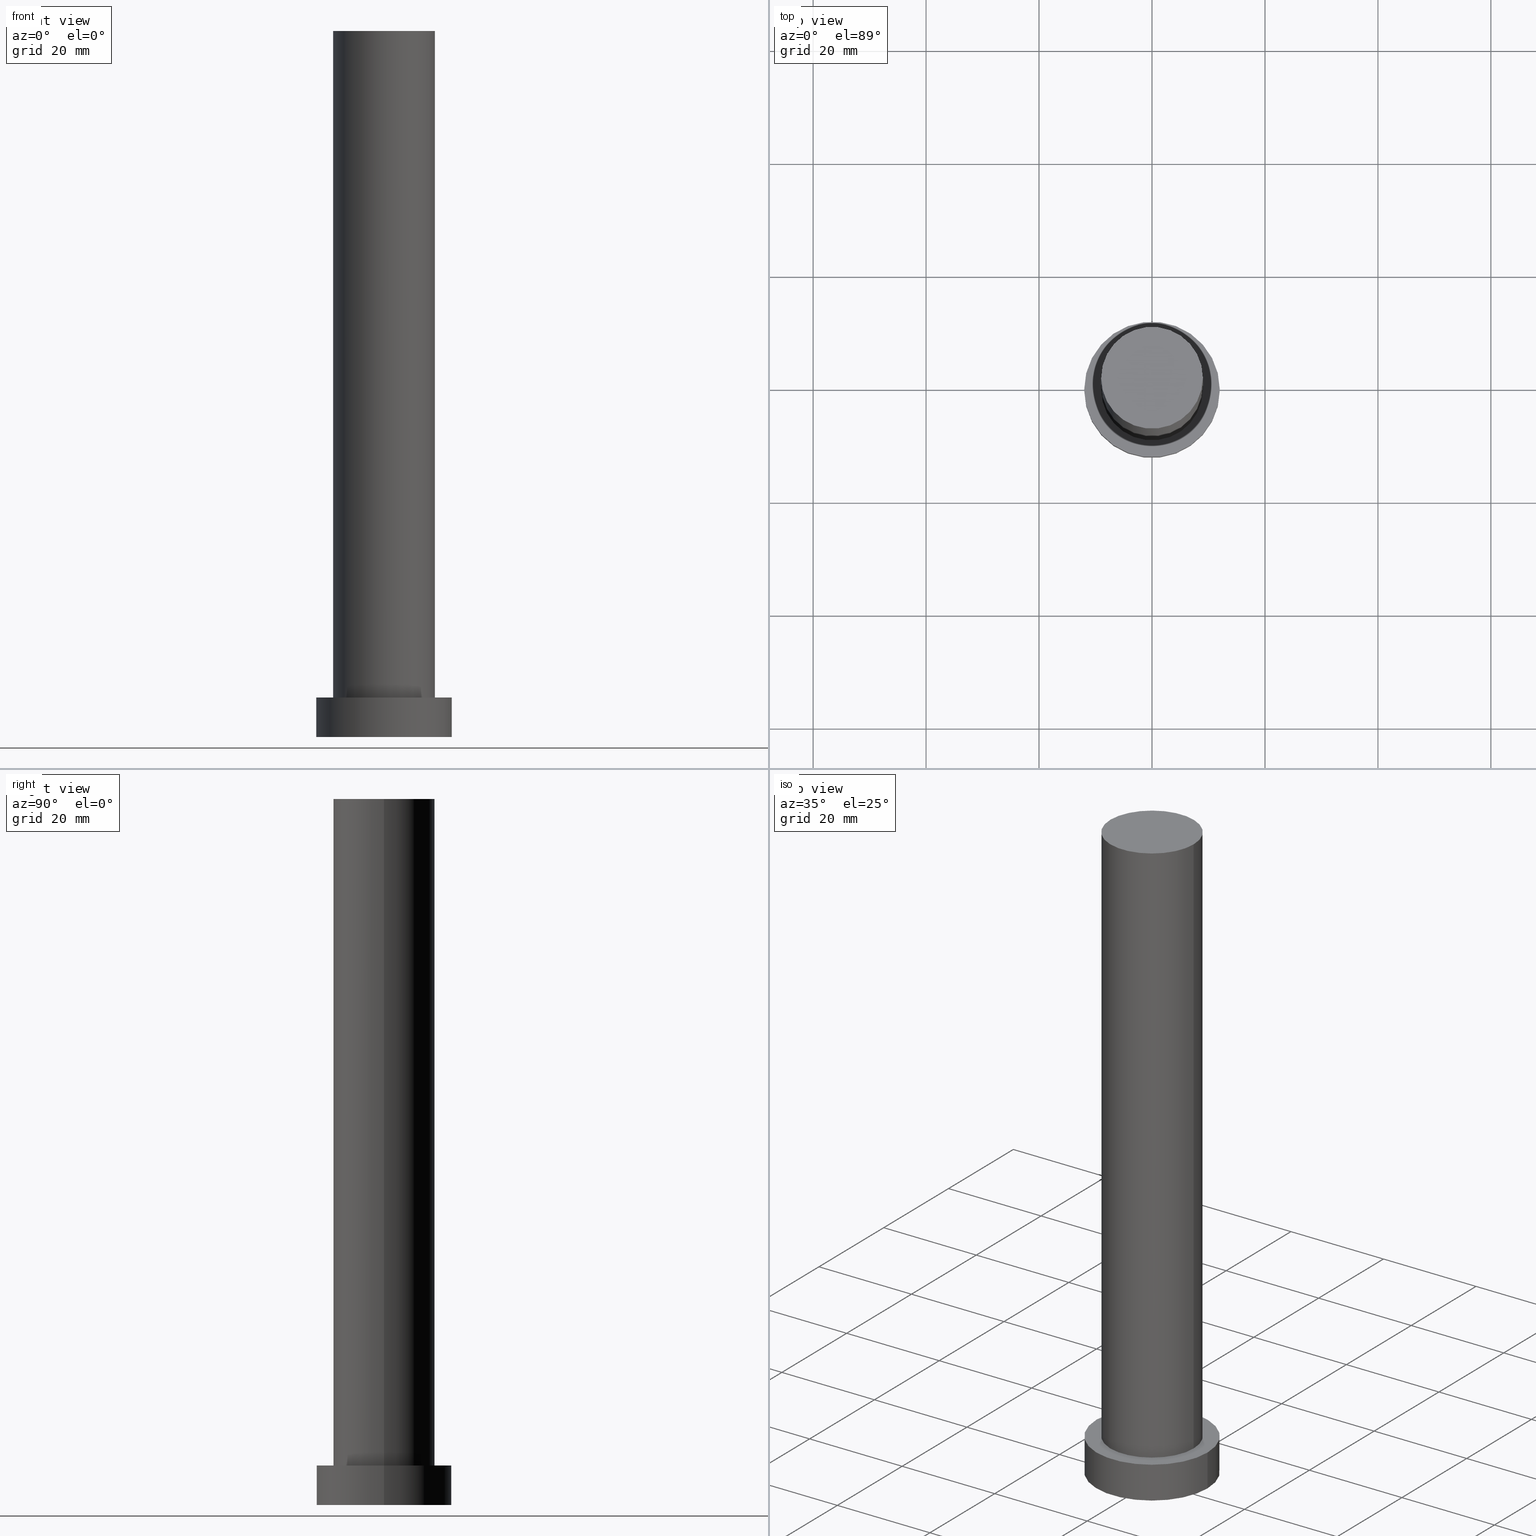
[diagram: canonical four-view strip — front | top / right | iso, engineering-drawing reading convention]
A machine part, canonical four-view strip (front | top / right | iso — engineering-drawing reading convention). The complete STEP part file that produces these views, byte-faithful:
ISO-10303-21;
HEADER;
FILE_DESCRIPTION (( 'STEP AP203' ),
    '1' );
FILE_NAME ('710a.STEP',
    '2023-02-13T09:14:13',
    ( '' ),
    ( '' ),
    'SwSTEP 2.0',
    'SolidWorks 2019',
    '' );
FILE_SCHEMA (( 'CONFIG_CONTROL_DESIGN' ));
ENDSEC;

DATA;
#1 = ADVANCED_FACE ( 'NONE', ( #109 ), #94, .T. ) ;
#2 = ORIENTED_EDGE ( 'NONE', *, *, #130, .T. ) ;
#3 = EDGE_LOOP ( 'NONE', ( #149, #112, #221, #139 ) ) ;
#4 = CYLINDRICAL_SURFACE ( 'NONE', #195, 12.00000000000000178 ) ;
#5 = EDGE_LOOP ( 'NONE', ( #68, #7, #147, #87 ) ) ;
#6 = LOCAL_TIME ( 10, 14, 13.00000000000000000, #77 ) ;
#7 = ORIENTED_EDGE ( 'NONE', *, *, #234, .T. ) ;
#8 = CARTESIAN_POINT ( 'NONE',  ( 0.000000000000000000, 0.000000000000000000, 125.0000000000000000 ) ) ;
#9 = FACE_OUTER_BOUND ( 'NONE', #242, .T. ) ;
#10 = EDGE_CURVE ( 'NONE', #53, #194, #13, .T. ) ;
#11 = APPROVAL_DATE_TIME ( #102, #123 ) ;
#12 = CARTESIAN_POINT ( 'NONE',  ( 0.000000000000000000, 0.000000000000000000, 125.0000000000000000 ) ) ;
#13 = CIRCLE ( 'NONE', #217, 12.00000000000000178 ) ;
#14 = PERSON_AND_ORGANIZATION ( #190, #51 ) ;
#15 = CARTESIAN_POINT ( 'NONE',  ( 0.000000000000000000, 0.000000000000000000, 0.000000000000000000 ) ) ;
#16 = APPROVAL_ROLE ( '' ) ;
#17 = CARTESIAN_POINT ( 'NONE',  ( 0.000000000000000000, 0.000000000000000000, 125.0000000000000000 ) ) ;
#18 = CALENDAR_DATE ( 2023, 13, 2 ) ;
#19 =( NAMED_UNIT ( * ) PLANE_ANGLE_UNIT ( ) SI_UNIT ( $, .RADIAN. ) );
#20 =( NAMED_UNIT ( * ) SI_UNIT ( $, .STERADIAN. ) SOLID_ANGLE_UNIT ( ) );
#21 = ADVANCED_FACE ( 'NONE', ( #222 ), #67, .T. ) ;
#22 = MECHANICAL_CONTEXT ( 'NONE', #42, 'mechanical' ) ;
#23 = EDGE_LOOP ( 'NONE', ( #163, #81, #2, #127 ) ) ;
#24 = AXIS2_PLACEMENT_3D ( 'NONE', #164, #241, #168 ) ;
#25 = DIRECTION ( 'NONE',  ( -0.000000000000000000, -0.000000000000000000, -1.000000000000000000 ) ) ;
#26 = CARTESIAN_POINT ( 'NONE',  ( -12.00000000000000178, 0.000000000000000000, 7.000000000000000000 ) ) ;
#27 = CC_DESIGN_DATE_AND_TIME_ASSIGNMENT ( #202, #172, ( #95 ) ) ;
#28 = EDGE_CURVE ( 'NONE', #233, #240, #219, .T. ) ;
#29 = AXIS2_PLACEMENT_3D ( 'NONE', #8, #239, #66 ) ;
#30 = CARTESIAN_POINT ( 'NONE',  ( 0.000000000000000000, 0.000000000000000000, 7.000000000000000000 ) ) ;
#31 = DIRECTION ( 'NONE',  ( 0.000000000000000000, 0.000000000000000000, 1.000000000000000000 ) ) ;
#32 = COORDINATED_UNIVERSAL_TIME_OFFSET ( 1, 0, .AHEAD. ) ;
#33 = DIRECTION ( 'NONE',  ( 1.000000000000000000, 0.000000000000000000, -0.000000000000000000 ) ) ;
#34 = DIRECTION ( 'NONE',  ( 1.000000000000000000, 0.000000000000000000, 0.000000000000000000 ) ) ;
#35 = DIRECTION ( 'NONE',  ( 0.000000000000000000, 0.000000000000000000, 1.000000000000000000 ) ) ;
#36 = PERSON_AND_ORGANIZATION_ROLE ( 'design_supplier' ) ;
#37 = SHAPE_DEFINITION_REPRESENTATION ( #38, #122 ) ;
#38 = PRODUCT_DEFINITION_SHAPE ( 'NONE', 'NONE',  #141 ) ;
#39 = CC_DESIGN_PERSON_AND_ORGANIZATION_ASSIGNMENT ( #129, #119, ( #95 ) ) ;
#40 = APPROVAL_STATUS ( 'not_yet_approved' ) ;
#41 = CIRCLE ( 'NONE', #180, 12.00000000000000178 ) ;
#42 = APPLICATION_CONTEXT ( 'configuration controlled 3d designs of mechanical parts and assemblies' ) ;
#43 = CARTESIAN_POINT ( 'NONE',  ( 0.000000000000000000, 0.000000000000000000, 7.000000000000000000 ) ) ;
#44 = CIRCLE ( 'NONE', #24, 9.000000000000000000 ) ;
#45 = APPROVAL ( #40, 'NEUR�EN�' ) ;
#46 = DIRECTION ( 'NONE',  ( 0.000000000000000000, 0.000000000000000000, 1.000000000000000000 ) ) ;
#47 = CC_DESIGN_APPROVAL ( #123, ( #148 ) ) ;
#48 = ORIENTED_EDGE ( 'NONE', *, *, #145, .F. ) ;
#49 = CARTESIAN_POINT ( 'NONE',  ( 0.000000000000000000, 0.000000000000000000, 7.000000000000000000 ) ) ;
#50 = ORIENTED_EDGE ( 'NONE', *, *, #130, .F. ) ;
#51 = ORGANIZATION ( 'NEUR�EN�', 'NEUR�EN�', '' ) ;
#52 = APPROVAL_ROLE ( '' ) ;
#53 = VERTEX_POINT ( 'NONE', #181 ) ;
#54 = FACE_OUTER_BOUND ( 'NONE', #223, .T. ) ;
#55 = CIRCLE ( 'NONE', #230, 9.000000000000000000 ) ;
#56 = APPROVAL_DATE_TIME ( #231, #70 ) ;
#57 = EDGE_CURVE ( 'NONE', #106, #63, #44, .T. ) ;
#58 = MANIFOLD_SOLID_BREP ( 'P�idat vysunut�m3', #93 ) ;
#59 = CARTESIAN_POINT ( 'NONE',  ( 0.000000000000000000, 0.000000000000000000, 125.0000000000000000 ) ) ;
#60 = AXIS2_PLACEMENT_3D ( 'NONE', #90, #236, #64 ) ;
#61 = ORIENTED_EDGE ( 'NONE', *, *, #65, .F. ) ;
#62 = CARTESIAN_POINT ( 'NONE',  ( -12.00000000000000178, 0.000000000000000000, 7.000000000000000000 ) ) ;
#63 = VERTEX_POINT ( 'NONE', #215 ) ;
#64 = DIRECTION ( 'NONE',  ( -1.000000000000000000, 0.000000000000000000, 0.000000000000000000 ) ) ;
#65 = EDGE_CURVE ( 'NONE', #98, #83, #55, .T. ) ;
#66 = DIRECTION ( 'NONE',  ( -1.000000000000000000, 0.000000000000000000, 0.000000000000000000 ) ) ;
#67 = CYLINDRICAL_SURFACE ( 'NONE', #29, 9.000000000000000000 ) ;
#68 = ORIENTED_EDGE ( 'NONE', *, *, #28, .F. ) ;
#69 = APPROVAL_ROLE ( '' ) ;
#70 = APPROVAL ( #137, 'NEUR�EN�' ) ;
#71 = ORIENTED_EDGE ( 'NONE', *, *, #145, .T. ) ;
#72 = EDGE_CURVE ( 'NONE', #240, #194, #197, .T. ) ;
#73 = CC_DESIGN_APPROVAL ( #70, ( #95 ) ) ;
#74 = DIRECTION ( 'NONE',  ( -0.000000000000000000, -0.000000000000000000, -1.000000000000000000 ) ) ;
#75 = FACE_BOUND ( 'NONE', #103, .T. ) ;
#76 = PRODUCT ( '710a', '710a', '', ( #22 ) ) ;
#77 = COORDINATED_UNIVERSAL_TIME_OFFSET ( 1, 0, .AHEAD. ) ;
#78 = DIRECTION ( 'NONE',  ( 1.000000000000000000, 0.000000000000000000, 0.000000000000000000 ) ) ;
#79 = DIRECTION ( 'NONE',  ( 1.000000000000000000, 0.000000000000000000, 0.000000000000000000 ) ) ;
#80 = LOCAL_TIME ( 10, 14, 13.00000000000000000, #247 ) ;
#81 = ORIENTED_EDGE ( 'NONE', *, *, #57, .F. ) ;
#82 = CARTESIAN_POINT ( 'NONE',  ( 12.00000000000000178, 1.469576158976824144E-15, 7.000000000000000000 ) ) ;
#83 = VERTEX_POINT ( 'NONE', #178 ) ;
#84 = CARTESIAN_POINT ( 'NONE',  ( 0.000000000000000000, 0.000000000000000000, 7.000000000000000000 ) ) ;
#85 = AXIS2_PLACEMENT_3D ( 'NONE', #49, #191, #33 ) ;
#86 = LOCAL_TIME ( 10, 14, 13.00000000000000000, #150 ) ;
#87 = ORIENTED_EDGE ( 'NONE', *, *, #72, .F. ) ;
#88 = DIRECTION ( 'NONE',  ( 0.000000000000000000, 0.000000000000000000, 1.000000000000000000 ) ) ;
#89 = CC_DESIGN_PERSON_AND_ORGANIZATION_ASSIGNMENT ( #187, #36, ( #148 ) ) ;
#90 = CARTESIAN_POINT ( 'NONE',  ( 0.000000000000000000, 0.000000000000000000, 7.000000000000000000 ) ) ;
#91 = ORIENTED_EDGE ( 'NONE', *, *, #159, .T. ) ;
#92 = AXIS2_PLACEMENT_3D ( 'NONE', #156, #133, #114 ) ;
#93 = CLOSED_SHELL ( 'NONE', ( #226, #97, #1, #107, #179, #21, #186 ) ) ;
#94 = CYLINDRICAL_SURFACE ( 'NONE', #60, 12.00000000000000178 ) ;
#95 = SECURITY_CLASSIFICATION ( '', '', #173 ) ;
#96 = LINE ( 'NONE', #116, #254 ) ;
#97 = ADVANCED_FACE ( 'NONE', ( #144 ), #4, .T. ) ;
#98 = VERTEX_POINT ( 'NONE', #245 ) ;
#99 = DIRECTION ( 'NONE',  ( 1.000000000000000000, 0.000000000000000000, -0.000000000000000000 ) ) ;
#100 = CALENDAR_DATE ( 2023, 13, 2 ) ;
#101 = APPLICATION_CONTEXT ( 'configuration controlled 3d designs of mechanical parts and assemblies' ) ;
#102 = DATE_AND_TIME ( #18, #80 ) ;
#103 = EDGE_LOOP ( 'NONE', ( #113, #61 ) ) ;
#104 = APPROVAL_PERSON_ORGANIZATION ( #210, #45, #52 ) ;
#105 = ORIENTED_EDGE ( 'NONE', *, *, #198, .F. ) ;
#106 = VERTEX_POINT ( 'NONE', #203 ) ;
#107 = ADVANCED_FACE ( 'NONE', ( #75, #151 ), #227, .T. ) ;
#108 = DIRECTION ( 'NONE',  ( -0.000000000000000000, -0.000000000000000000, -1.000000000000000000 ) ) ;
#109 = FACE_OUTER_BOUND ( 'NONE', #3, .T. ) ;
#110 = AXIS2_PLACEMENT_3D ( 'NONE', #211, #212, #78 ) ;
#111 = DESIGN_CONTEXT ( 'detailed design', #101, 'design' ) ;
#112 = ORIENTED_EDGE ( 'NONE', *, *, #115, .F. ) ;
#113 = ORIENTED_EDGE ( 'NONE', *, *, #244, .F. ) ;
#114 = DIRECTION ( 'NONE',  ( 1.000000000000000000, 0.000000000000000000, 0.000000000000000000 ) ) ;
#115 = EDGE_CURVE ( 'NONE', #240, #233, #246, .T. ) ;
#116 = CARTESIAN_POINT ( 'NONE',  ( 9.000000000000000000, 1.102182119232617714E-15, 125.0000000000000000 ) ) ;
#117 = APPROVAL_STATUS ( 'not_yet_approved' ) ;
#118 = DIRECTION ( 'NONE',  ( 1.000000000000000000, 0.000000000000000000, 0.000000000000000000 ) ) ;
#119 = PERSON_AND_ORGANIZATION_ROLE ( 'classification_officer' ) ;
#120 = ORIENTED_EDGE ( 'NONE', *, *, #57, .T. ) ;
#121 = CC_DESIGN_APPROVAL ( #45, ( #141 ) ) ;
#122 = ADVANCED_BREP_SHAPE_REPRESENTATION ( '710a', ( #58, #110 ), #243 ) ;
#123 = APPROVAL ( #117, 'NEUR�EN�' ) ;
#124 = PERSON_AND_ORGANIZATION_ROLE ( 'design_owner' ) ;
#125 = DIRECTION ( 'NONE',  ( 1.000000000000000000, 0.000000000000000000, 0.000000000000000000 ) ) ;
#126 = UNCERTAINTY_MEASURE_WITH_UNIT (LENGTH_MEASURE( 1.000000000000000082E-05 ), #142, 'distance_accuracy_value', 'NONE');
#127 = ORIENTED_EDGE ( 'NONE', *, *, #244, .T. ) ;
#128 = LINE ( 'NONE', #183, #140 ) ;
#129 = PERSON_AND_ORGANIZATION ( #190, #51 ) ;
#130 = EDGE_CURVE ( 'NONE', #106, #83, #128, .T. ) ;
#131 = DIRECTION ( 'NONE',  ( -1.000000000000000000, 0.000000000000000000, 0.000000000000000000 ) ) ;
#132 = CC_DESIGN_SECURITY_CLASSIFICATION ( #95, ( #148 ) ) ;
#133 = DIRECTION ( 'NONE',  ( 0.000000000000000000, 0.000000000000000000, 1.000000000000000000 ) ) ;
#134 = DATE_AND_TIME ( #155, #169 ) ;
#135 = EDGE_LOOP ( 'NONE', ( #120, #71 ) ) ;
#136 = CARTESIAN_POINT ( 'NONE',  ( -12.00000000000000178, 0.000000000000000000, 0.000000000000000000 ) ) ;
#137 = APPROVAL_STATUS ( 'not_yet_approved' ) ;
#138 = DIRECTION ( 'NONE',  ( -1.000000000000000000, 0.000000000000000000, 0.000000000000000000 ) ) ;
#139 = ORIENTED_EDGE ( 'NONE', *, *, #198, .T. ) ;
#140 = VECTOR ( 'NONE', #74, 1000.000000000000000 ) ;
#141 = PRODUCT_DEFINITION ( 'NEZN�M�', '', #148, #111 ) ;
#142 =( LENGTH_UNIT ( ) NAMED_UNIT ( * ) SI_UNIT ( .MILLI., .METRE. ) );
#143 = DIRECTION ( 'NONE',  ( 1.000000000000000000, 0.000000000000000000, 0.000000000000000000 ) ) ;
#144 = FACE_OUTER_BOUND ( 'NONE', #5, .T. ) ;
#145 = EDGE_CURVE ( 'NONE', #63, #106, #220, .T. ) ;
#146 = AXIS2_PLACEMENT_3D ( 'NONE', #12, #205, #34 ) ;
#147 = ORIENTED_EDGE ( 'NONE', *, *, #10, .T. ) ;
#148 = PRODUCT_DEFINITION_FORMATION_WITH_SPECIFIED_SOURCE ( 'LIBOVOLN�', '', #76, .NOT_KNOWN. ) ;
#149 = ORIENTED_EDGE ( 'NONE', *, *, #234, .F. ) ;
#150 = COORDINATED_UNIVERSAL_TIME_OFFSET ( 1, 0, .AHEAD. ) ;
#151 = FACE_OUTER_BOUND ( 'NONE', #248, .T. ) ;
#152 = COORDINATED_UNIVERSAL_TIME_OFFSET ( 1, 0, .AHEAD. ) ;
#153 = ORIENTED_EDGE ( 'NONE', *, *, #28, .T. ) ;
#154 = PLANE ( 'NONE',  #177 ) ;
#155 = CALENDAR_DATE ( 2023, 13, 2 ) ;
#156 = CARTESIAN_POINT ( 'NONE',  ( 0.000000000000000000, 0.000000000000000000, 7.000000000000000000 ) ) ;
#157 = PERSON_AND_ORGANIZATION ( #190, #51 ) ;
#158 = LINE ( 'NONE', #161, #238 ) ;
#159 = EDGE_CURVE ( 'NONE', #63, #98, #96, .T. ) ;
#160 = AXIS2_PLACEMENT_3D ( 'NONE', #30, #46, #143 ) ;
#161 = CARTESIAN_POINT ( 'NONE',  ( 12.00000000000000178, 1.469576158976824144E-15, 7.000000000000000000 ) ) ;
#162 = AXIS2_PLACEMENT_3D ( 'NONE', #84, #192, #79 ) ;
#163 = ORIENTED_EDGE ( 'NONE', *, *, #159, .F. ) ;
#164 = CARTESIAN_POINT ( 'NONE',  ( 0.000000000000000000, 0.000000000000000000, 125.0000000000000000 ) ) ;
#165 = CARTESIAN_POINT ( 'NONE',  ( 0.000000000000000000, 0.000000000000000000, 0.000000000000000000 ) ) ;
#166 = APPROVAL_PERSON_ORGANIZATION ( #14, #123, #16 ) ;
#167 = CC_DESIGN_DATE_AND_TIME_ASSIGNMENT ( #134, #170, ( #141 ) ) ;
#168 = DIRECTION ( 'NONE',  ( 1.000000000000000000, 0.000000000000000000, 0.000000000000000000 ) ) ;
#169 = LOCAL_TIME ( 10, 14, 13.00000000000000000, #152 ) ;
#170 = DATE_TIME_ROLE ( 'creation_date' ) ;
#171 = FACE_OUTER_BOUND ( 'NONE', #135, .T. ) ;
#172 = DATE_TIME_ROLE ( 'classification_date' ) ;
#173 = SECURITY_CLASSIFICATION_LEVEL ( 'unclassified' ) ;
#174 = CC_DESIGN_PERSON_AND_ORGANIZATION_ASSIGNMENT ( #228, #207, ( #148 ) ) ;
#175 = APPLICATION_PROTOCOL_DEFINITION ( 'international standard', 'config_control_design', 1994, #101 ) ;
#176 = ORIENTED_EDGE ( 'NONE', *, *, #10, .F. ) ;
#177 = AXIS2_PLACEMENT_3D ( 'NONE', #17, #249, #229 ) ;
#178 = CARTESIAN_POINT ( 'NONE',  ( -9.000000000000000000, 0.000000000000000000, 7.000000000000000000 ) ) ;
#179 = ADVANCED_FACE ( 'NONE', ( #54 ), #185, .F. ) ;
#180 = AXIS2_PLACEMENT_3D ( 'NONE', #208, #35, #118 ) ;
#181 = CARTESIAN_POINT ( 'NONE',  ( 12.00000000000000178, 1.469576158976824144E-15, 0.000000000000000000 ) ) ;
#182 = ORIENTED_EDGE ( 'NONE', *, *, #115, .T. ) ;
#183 = CARTESIAN_POINT ( 'NONE',  ( -9.000000000000000000, 0.000000000000000000, 125.0000000000000000 ) ) ;
#184 = APPROVAL_DATE_TIME ( #204, #45 ) ;
#185 = PLANE ( 'NONE',  #199 ) ;
#186 = ADVANCED_FACE ( 'NONE', ( #171 ), #154, .T. ) ;
#187 = PERSON_AND_ORGANIZATION ( #190, #51 ) ;
#188 = CYLINDRICAL_SURFACE ( 'NONE', #214, 9.000000000000000000 ) ;
#189 = APPROVAL_PERSON_ORGANIZATION ( #232, #70, #69 ) ;
#190 = PERSON ( 'NEUR�EN�', 'NEUR�EN�', 'NEUR�EN�', ('NEUR�EN�'), ('NEUR�EN�'), ('NEUR�EN�') ) ;
#191 = DIRECTION ( 'NONE',  ( 0.000000000000000000, 0.000000000000000000, 1.000000000000000000 ) ) ;
#192 = DIRECTION ( 'NONE',  ( 0.000000000000000000, 0.000000000000000000, 1.000000000000000000 ) ) ;
#193 = PERSON_AND_ORGANIZATION ( #190, #51 ) ;
#194 = VERTEX_POINT ( 'NONE', #136 ) ;
#195 = AXIS2_PLACEMENT_3D ( 'NONE', #237, #224, #131 ) ;
#196 = LOCAL_TIME ( 10, 14, 13.00000000000000000, #32 ) ;
#197 = LINE ( 'NONE', #26, #253 ) ;
#198 = EDGE_CURVE ( 'NONE', #194, #53, #41, .T. ) ;
#199 = AXIS2_PLACEMENT_3D ( 'NONE', #15, #31, #99 ) ;
#200 = DIRECTION ( 'NONE',  ( 0.000000000000000000, 0.000000000000000000, 1.000000000000000000 ) ) ;
#201 = DIRECTION ( 'NONE',  ( -0.000000000000000000, -0.000000000000000000, -1.000000000000000000 ) ) ;
#202 = DATE_AND_TIME ( #100, #86 ) ;
#203 = CARTESIAN_POINT ( 'NONE',  ( -9.000000000000000000, 0.000000000000000000, 125.0000000000000000 ) ) ;
#204 = DATE_AND_TIME ( #251, #6 ) ;
#205 = DIRECTION ( 'NONE',  ( 0.000000000000000000, 0.000000000000000000, 1.000000000000000000 ) ) ;
#206 = CC_DESIGN_PERSON_AND_ORGANIZATION_ASSIGNMENT ( #157, #225, ( #141 ) ) ;
#207 = PERSON_AND_ORGANIZATION_ROLE ( 'creator' ) ;
#208 = CARTESIAN_POINT ( 'NONE',  ( 0.000000000000000000, 0.000000000000000000, 0.000000000000000000 ) ) ;
#209 = CIRCLE ( 'NONE', #162, 9.000000000000000000 ) ;
#210 = PERSON_AND_ORGANIZATION ( #190, #51 ) ;
#211 = CARTESIAN_POINT ( 'NONE',  ( 0.000000000000000000, 0.000000000000000000, 0.000000000000000000 ) ) ;
#212 = DIRECTION ( 'NONE',  ( 0.000000000000000000, 0.000000000000000000, 1.000000000000000000 ) ) ;
#213 = PRODUCT_RELATED_PRODUCT_CATEGORY ( 'detail', '', ( #76 ) ) ;
#214 = AXIS2_PLACEMENT_3D ( 'NONE', #59, #25, #138 ) ;
#215 = CARTESIAN_POINT ( 'NONE',  ( 9.000000000000000000, 1.102182119232617714E-15, 125.0000000000000000 ) ) ;
#216 = CC_DESIGN_PERSON_AND_ORGANIZATION_ASSIGNMENT ( #193, #124, ( #76 ) ) ;
#217 = AXIS2_PLACEMENT_3D ( 'NONE', #165, #200, #218 ) ;
#218 = DIRECTION ( 'NONE',  ( 1.000000000000000000, 0.000000000000000000, 0.000000000000000000 ) ) ;
#219 = CIRCLE ( 'NONE', #160, 12.00000000000000178 ) ;
#220 = CIRCLE ( 'NONE', #146, 9.000000000000000000 ) ;
#221 = ORIENTED_EDGE ( 'NONE', *, *, #72, .T. ) ;
#222 = FACE_OUTER_BOUND ( 'NONE', #23, .T. ) ;
#223 = EDGE_LOOP ( 'NONE', ( #105, #176 ) ) ;
#224 = DIRECTION ( 'NONE',  ( -0.000000000000000000, -0.000000000000000000, -1.000000000000000000 ) ) ;
#225 = PERSON_AND_ORGANIZATION_ROLE ( 'creator' ) ;
#226 = ADVANCED_FACE ( 'NONE', ( #9 ), #188, .T. ) ;
#227 = PLANE ( 'NONE',  #85 ) ;
#228 = PERSON_AND_ORGANIZATION ( #190, #51 ) ;
#229 = DIRECTION ( 'NONE',  ( 1.000000000000000000, 0.000000000000000000, -0.000000000000000000 ) ) ;
#230 = AXIS2_PLACEMENT_3D ( 'NONE', #43, #88, #125 ) ;
#231 = DATE_AND_TIME ( #250, #196 ) ;
#232 = PERSON_AND_ORGANIZATION ( #190, #51 ) ;
#233 = VERTEX_POINT ( 'NONE', #82 ) ;
#234 = EDGE_CURVE ( 'NONE', #233, #53, #158, .T. ) ;
#235 = ORIENTED_EDGE ( 'NONE', *, *, #65, .T. ) ;
#236 = DIRECTION ( 'NONE',  ( -0.000000000000000000, -0.000000000000000000, -1.000000000000000000 ) ) ;
#237 = CARTESIAN_POINT ( 'NONE',  ( 0.000000000000000000, 0.000000000000000000, 7.000000000000000000 ) ) ;
#238 = VECTOR ( 'NONE', #255, 1000.000000000000000 ) ;
#239 = DIRECTION ( 'NONE',  ( -0.000000000000000000, -0.000000000000000000, -1.000000000000000000 ) ) ;
#240 = VERTEX_POINT ( 'NONE', #62 ) ;
#241 = DIRECTION ( 'NONE',  ( 0.000000000000000000, 0.000000000000000000, 1.000000000000000000 ) ) ;
#242 = EDGE_LOOP ( 'NONE', ( #48, #91, #235, #50 ) ) ;
#243 =( GEOMETRIC_REPRESENTATION_CONTEXT ( 3 ) GLOBAL_UNCERTAINTY_ASSIGNED_CONTEXT ( ( #126 ) ) GLOBAL_UNIT_ASSIGNED_CONTEXT ( ( #142, #19, #20 ) ) REPRESENTATION_CONTEXT ( 'NONE', 'WORKASPACE' ) );
#244 = EDGE_CURVE ( 'NONE', #83, #98, #209, .T. ) ;
#245 = CARTESIAN_POINT ( 'NONE',  ( 9.000000000000000000, 1.102182119232617714E-15, 7.000000000000000000 ) ) ;
#246 = CIRCLE ( 'NONE', #92, 12.00000000000000178 ) ;
#247 = COORDINATED_UNIVERSAL_TIME_OFFSET ( 1, 0, .AHEAD. ) ;
#248 = EDGE_LOOP ( 'NONE', ( #182, #153 ) ) ;
#249 = DIRECTION ( 'NONE',  ( 0.000000000000000000, 0.000000000000000000, 1.000000000000000000 ) ) ;
#250 = CALENDAR_DATE ( 2023, 13, 2 ) ;
#251 = CALENDAR_DATE ( 2023, 13, 2 ) ;
#252 = APPLICATION_PROTOCOL_DEFINITION ( 'international standard', 'config_control_design', 1994, #42 ) ;
#253 = VECTOR ( 'NONE', #108, 1000.000000000000000 ) ;
#254 = VECTOR ( 'NONE', #201, 1000.000000000000000 ) ;
#255 = DIRECTION ( 'NONE',  ( -0.000000000000000000, -0.000000000000000000, -1.000000000000000000 ) ) ;
ENDSEC;
END-ISO-10303-21;
